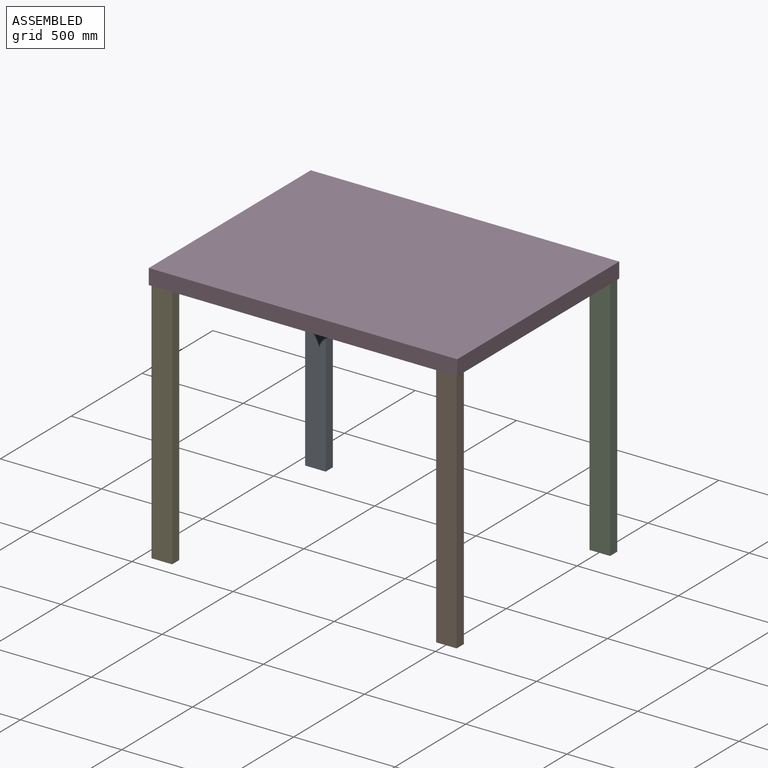
[diagram: assembled view]
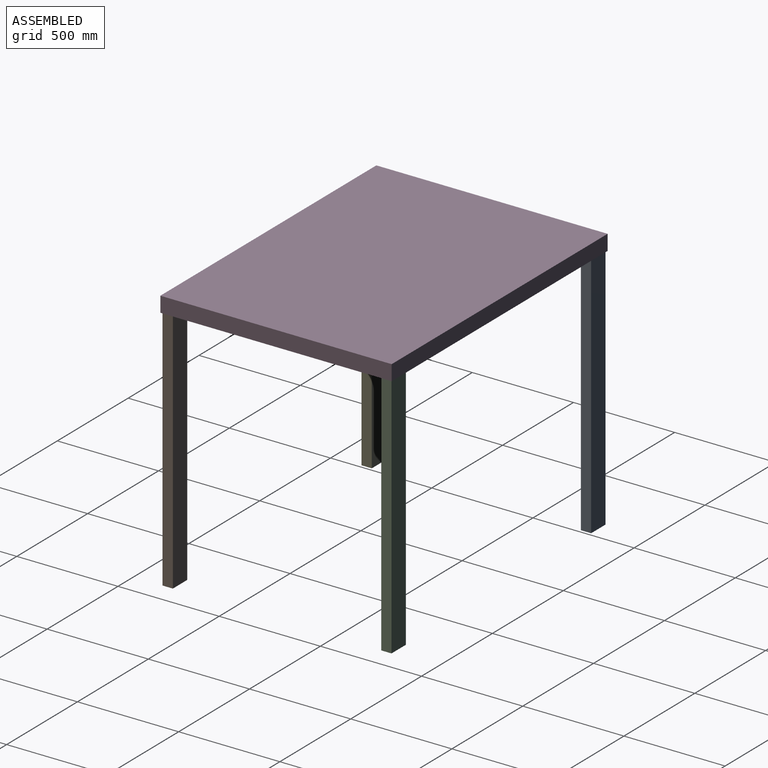
[diagram: assembled view, second angle]
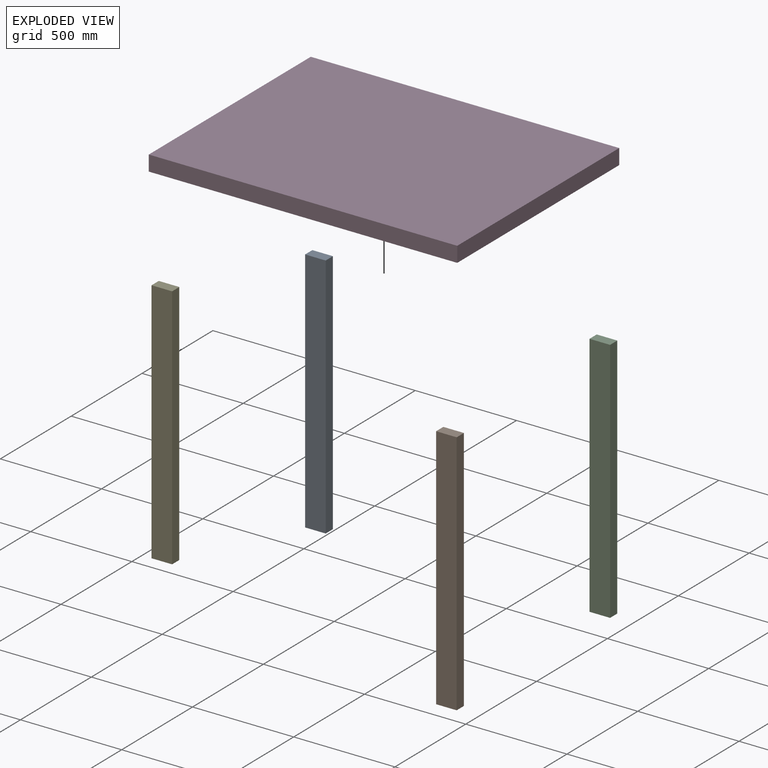
[diagram: exploded view]
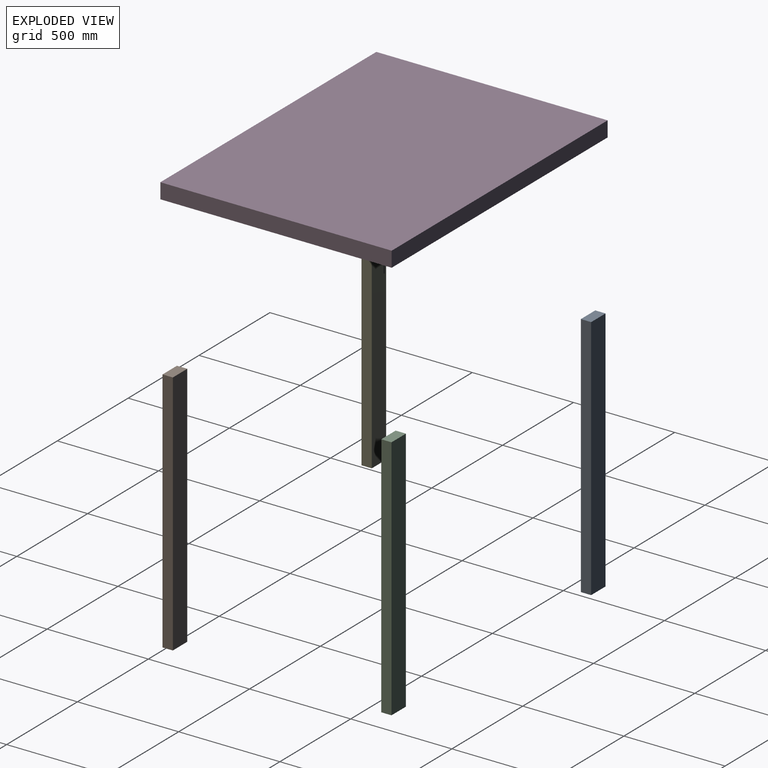
[diagram: exploded view, second angle]
ASSEMBLY  parts=5 mates=4
PART A: 6 faces, bbox 101.6x50.8x1219.2 mm
  f0: plane 1219.2x101.6mm, normal (0,1,0), area 123870.7mm2, adj f1,f3,f4,f5
  f1: plane 1219.2x50.8mm, normal (-1,0,0), area 61935.4mm2, adj f0,f2,f4,f5
  f2: plane 1219.2x101.6mm, normal (0,-1,0), area 123870.7mm2, adj f1,f3,f4,f5
  f3: plane 1219.2x50.8mm, normal (1,0,0), area 61935.4mm2, adj f0,f2,f4,f5
  f4: plane 101.6x50.8mm, normal (0,0,1), area 5161.3mm2, adj f0,f1,f2,f3
  f5: plane 101.6x50.8mm, normal (0,0,-1), area 5161.3mm2, adj f0,f1,f2,f3
PART B: same geometry as A
PART C: same geometry as A
PART D: 6 faces, bbox 1524x1143x76.2 mm
  f0: plane 1524x76.2mm, normal (0,1,0), area 116128.8mm2, adj f1,f3,f4,f5
  f1: plane 1143x76.2mm, normal (-1,0,0), area 87096.6mm2, adj f0,f2,f4,f5
  f2: plane 1524x76.2mm, normal (0,-1,0), area 116128.8mm2, adj f1,f3,f4,f5
  f3: plane 1143x76.2mm, normal (1,0,0), area 87096.6mm2, adj f0,f2,f4,f5
  f4: plane 1524x1143mm, normal (0,0,1), area 1741932mm2, adj f0,f1,f2,f3
  f5: plane 1524x1143mm, normal (0,0,-1), area 1741932mm2, adj f0,f1,f2,f3
PART E: same geometry as A
PLACE A t=(-525.85,638.54,-1344.54)mm
PLACE B t=(879.48,-444.27,-1344.54)mm
PLACE C t=(880.57,636.97,-1344.54)mm
PLACE D t=(179.83,-98.57,-125.34)mm fixed
PLACE E t=(-525.81,-445.34,-1344.54)mm
MATE planar D.f5 <-> B.f4  axis (0,0,-1) through (181.76,91.79,-125.34)mm
MATE planar D.f5 <-> C.f4  axis (0,0,-1) through (943.76,91.79,-125.34)mm
MATE planar D.f5 <-> A.f4  axis (0,0,-1) through (-580.24,91.79,-125.34)mm
MATE planar D.f5 <-> E.f4  axis (0,0,-1) through (181.76,91.79,-125.34)mm
